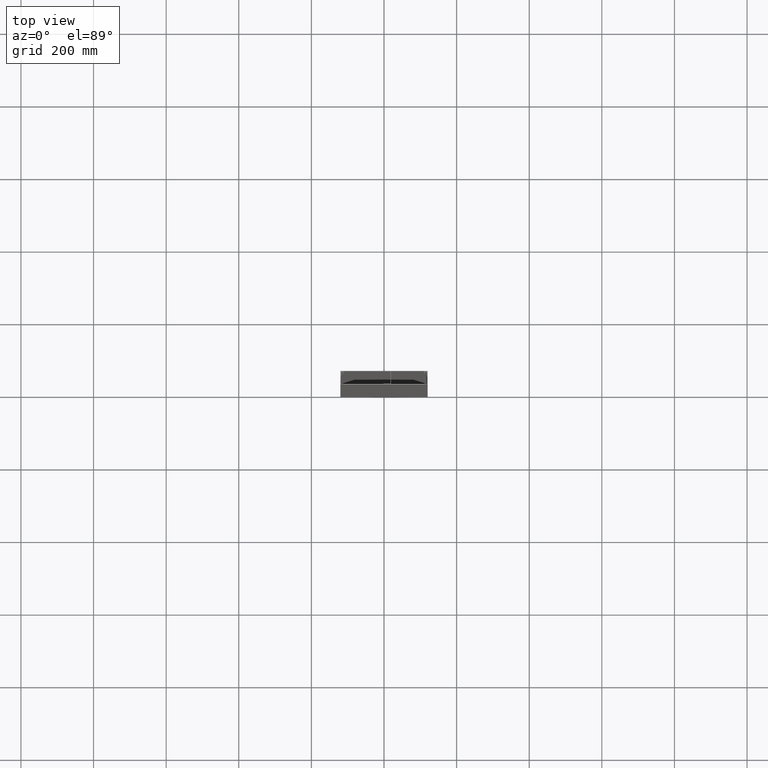
[diagram: clean part render]
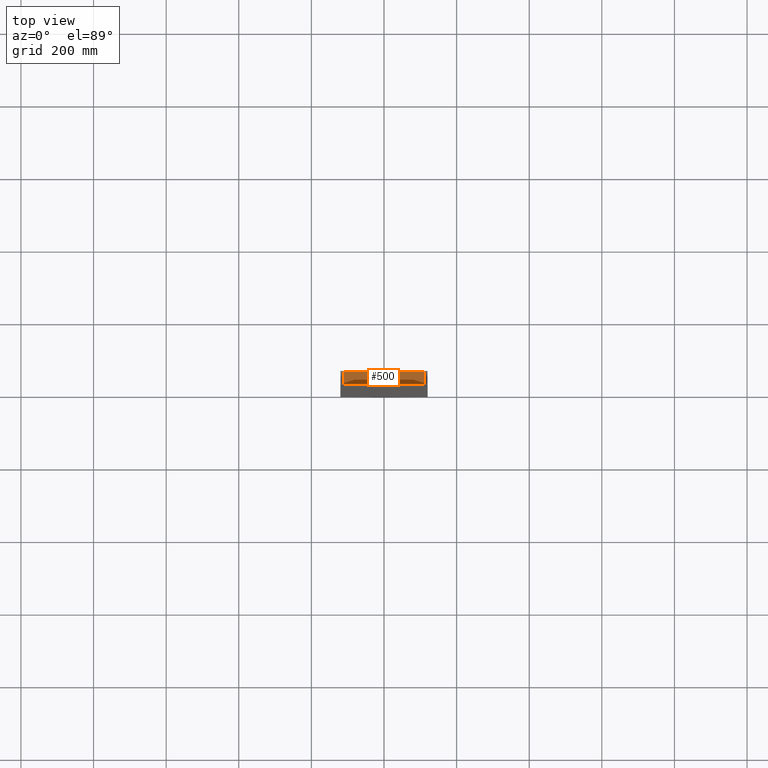
[diagram: same view with one face highlighted and labeled with its STEP entity id]
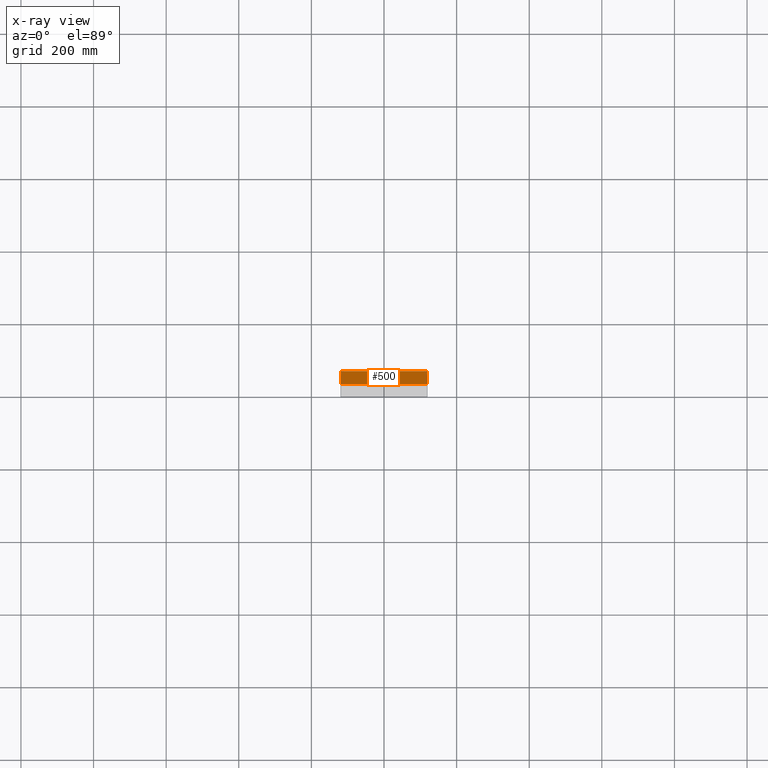
[diagram: x-ray of the same camera — body ghosted, the highlighted face saturated]
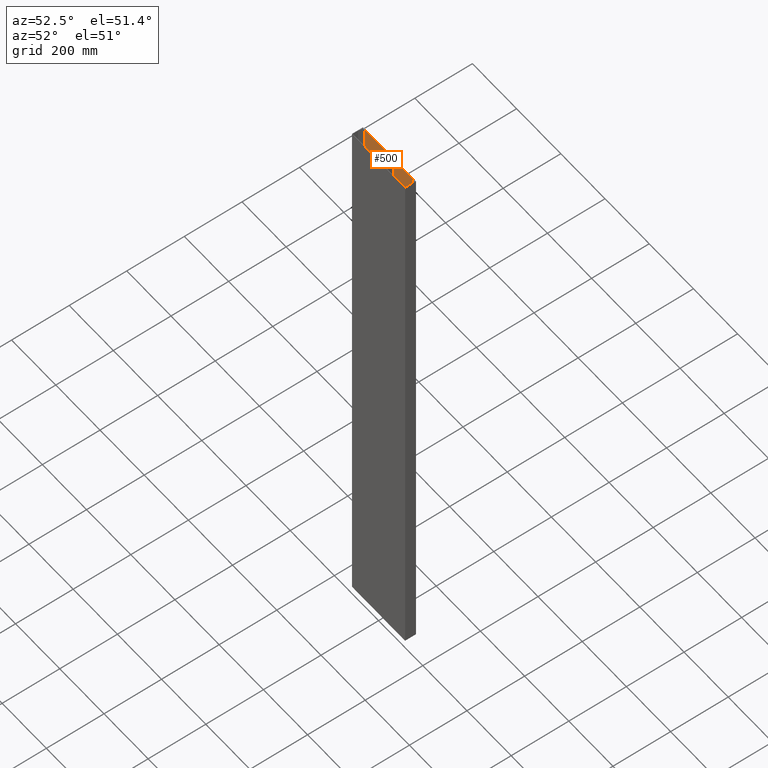
[diagram: same view with one face highlighted and labeled with its STEP entity id]
A machine part, top view. The second image highlights one B-rep face of the part: STEP entity #500.
The next image is the same camera in x-ray: the body ghosted, the highlighted face saturated — about 2% of this face is hidden behind the body in this view.
A second angle (auxiliary view) of the same face is appended — the face is thin or edge-on in the first view.
In plain terms, the highlighted planar face has unit normal (0, -1, 0).
Its self-contained STEP definition (entity closure, byte-faithful):
#276=DIRECTION('',(1.E0,0.E0,0.E0));
#277=VECTOR('',#276,2.375E2);
#278=CARTESIAN_POINT('',(-1.1875E2,3.65028E1,0.E0));
#279=LINE('',#278,#277);
#316=DIRECTION('',(0.E0,0.E0,-1.E0));
#317=VECTOR('',#316,2.E3);
#318=CARTESIAN_POINT('',(-1.1875E2,3.65028E1,0.E0));
#319=LINE('',#318,#317);
#320=DIRECTION('',(0.E0,0.E0,-1.E0));
#321=VECTOR('',#320,2.E3);
#322=CARTESIAN_POINT('',(1.1875E2,3.65028E1,0.E0));
#323=LINE('',#322,#321);
#348=DIRECTION('',(1.E0,0.E0,0.E0));
#349=VECTOR('',#348,2.375E2);
#350=CARTESIAN_POINT('',(-1.1875E2,3.65028E1,-2.E3));
#351=LINE('',#350,#349);
#370=CARTESIAN_POINT('',(-1.1875E2,3.65028E1,0.E0));
#371=VERTEX_POINT('',#370);
#372=CARTESIAN_POINT('',(1.1875E2,3.65028E1,0.E0));
#373=VERTEX_POINT('',#372);
#386=CARTESIAN_POINT('',(-1.1875E2,3.65028E1,-2.E3));
#387=VERTEX_POINT('',#386);
#388=CARTESIAN_POINT('',(1.1875E2,3.65028E1,-2.E3));
#389=VERTEX_POINT('',#388);
#487=CARTESIAN_POINT('',(-1.1875E2,3.65028E1,0.E0));
#488=DIRECTION('',(0.E0,-1.E0,0.E0));
#489=DIRECTION('',(1.E0,0.E0,0.E0));
#490=AXIS2_PLACEMENT_3D('',#487,#488,#489);
#491=PLANE('',#490);
#492=ORIENTED_EDGE('',*,*,#403,.T.);
#494=ORIENTED_EDGE('',*,*,#493,.T.);
#496=ORIENTED_EDGE('',*,*,#495,.F.);
#497=ORIENTED_EDGE('',*,*,#479,.F.);
#498=EDGE_LOOP('',(#492,#494,#496,#497));
#499=FACE_OUTER_BOUND('',#498,.F.);
#403=EDGE_CURVE('',#371,#373,#279,.T.);
#479=EDGE_CURVE('',#371,#387,#319,.T.);
#493=EDGE_CURVE('',#373,#389,#323,.T.);
#495=EDGE_CURVE('',#387,#389,#351,.T.);
#500=ADVANCED_FACE('',(#499),#491,.T.);